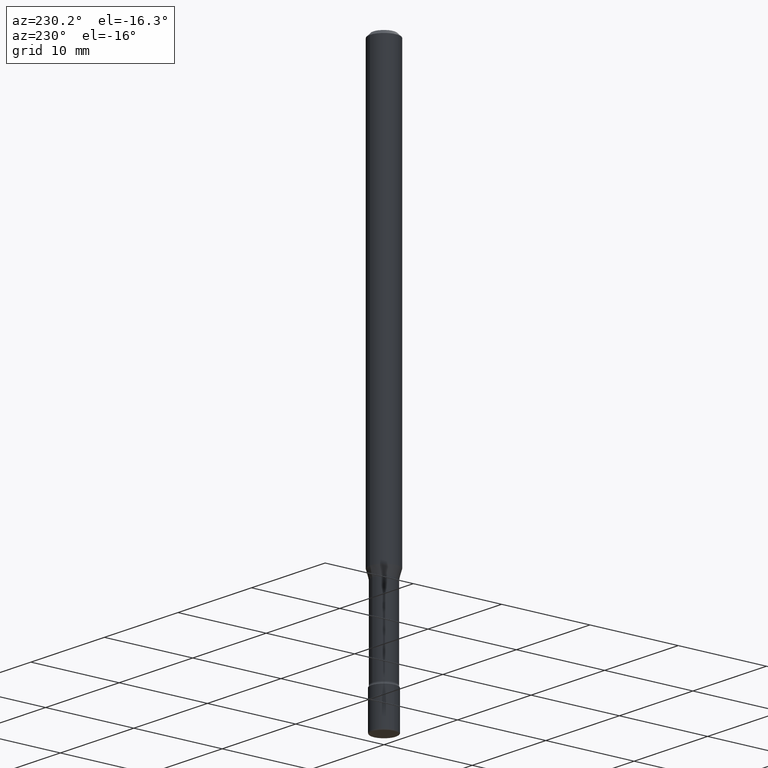
[diagram: clean part render]
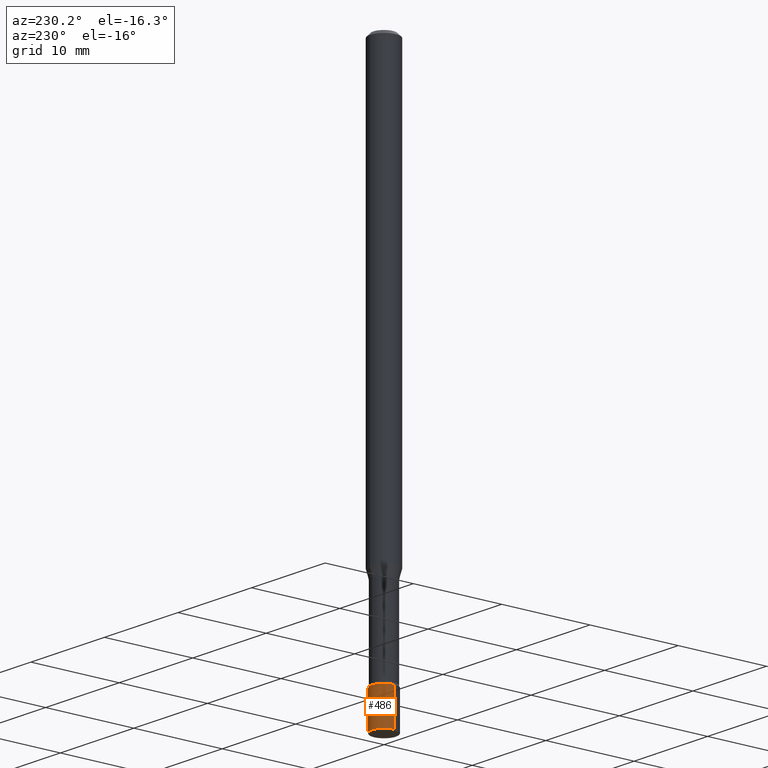
[diagram: same view with one face highlighted and labeled with its STEP entity id]
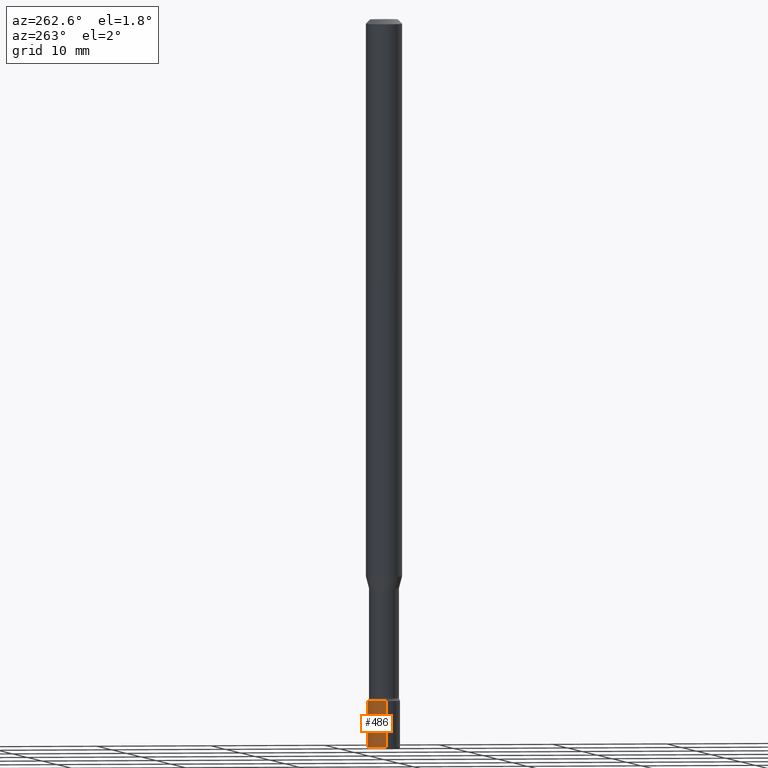
[diagram: same view with one face highlighted and labeled with its STEP entity id]
A machine part, auxiliary view. The second image highlights one B-rep face of the part: STEP entity #486.
A second angle (auxiliary view) of the same face is appended — the face is thin or edge-on in the first view.
In plain terms, the highlighted cylindrical surface (edge-blend (fillet) strip) has radius 1.397 mm, axis along (-0, 0, 1).
Its self-contained STEP definition (entity closure, byte-faithful):
#5 = EDGE_LOOP ( 'NONE', ( #14, #91, #257, #425 ) ) ;
#10 = DIRECTION ( 'NONE',  ( 1.000000000000000000, -6.982962677686262766E-15, 0.000000000000000000 ) ) ;
#14 = ORIENTED_EDGE ( 'NONE', *, *, #437, .T. ) ;
#47 = CIRCLE ( 'NONE', #453, 0.05500000000000000028 ) ;
#58 = LINE ( 'NONE', #511, #235 ) ;
#86 = EDGE_CURVE ( 'NONE', #407, #329, #58, .T. ) ;
#91 = ORIENTED_EDGE ( 'NONE', *, *, #86, .T. ) ;
#105 = CARTESIAN_POINT ( 'NONE',  ( 0.05500000000000000028, -3.840629472727446888E-16, 2.681897226687764826E-30 ) ) ;
#110 = DIRECTION ( 'NONE',  ( -2.445468806185136877E-29, 3.491481338843145188E-15, 1.000000000000000000 ) ) ;
#127 = CIRCLE ( 'NONE', #269, 0.05500000000000000028 ) ;
#167 = DIRECTION ( 'NONE',  ( 1.000000000000000000, -6.982962677686266711E-15, 4.876176775795935793E-29 ) ) ;
#178 = FACE_OUTER_BOUND ( 'NONE', #5, .T. ) ;
#180 = CARTESIAN_POINT ( 'NONE',  ( 5.710169662442294357E-29, -8.152608926198745099E-15, -2.334999999999999964 ) ) ;
#211 = CARTESIAN_POINT ( 'NONE',  ( 6.101444671431915719E-29, -8.711245940413648329E-15, -2.495000000000000107 ) ) ;
#225 = DIRECTION ( 'NONE',  ( -2.445468806185136877E-29, 3.491481338843145188E-15, 1.000000000000000000 ) ) ;
#235 = VECTOR ( 'NONE', #110, 39.37007874015748143 ) ;
#247 = EDGE_CURVE ( 'NONE', #481, #559, #274, .T. ) ;
#252 = EDGE_CURVE ( 'NONE', #559, #329, #127, .T. ) ;
#257 = ORIENTED_EDGE ( 'NONE', *, *, #252, .F. ) ;
#260 = CYLINDRICAL_SURFACE ( 'NONE', #402, 0.05500000000000000028 ) ;
#265 = CARTESIAN_POINT ( 'NONE',  ( 0.000000000000000000, 0.000000000000000000, 0.000000000000000000 ) ) ;
#269 = AXIS2_PLACEMENT_3D ( 'NONE', #180, #541, #10 ) ;
#274 = LINE ( 'NONE', #105, #555 ) ;
#290 = CARTESIAN_POINT ( 'NONE',  ( 0.05500000000000000028, -8.536671873471490084E-15, -2.334999999999999964 ) ) ;
#329 = VERTEX_POINT ( 'NONE', #337 ) ;
#337 = CARTESIAN_POINT ( 'NONE',  ( -0.05500000000000000028, -8.041128928638142054E-15, -2.334999999999999964 ) ) ;
#386 = CARTESIAN_POINT ( 'NONE',  ( -0.05499999999999988926, -8.320447435745593669E-15, -2.495000000000000107 ) ) ;
#399 = DIRECTION ( 'NONE',  ( -2.445468806185136597E-29, 3.491481338843145583E-15, 1.000000000000000000 ) ) ;
#402 = AXIS2_PLACEMENT_3D ( 'NONE', #265, #566, #167 ) ;
#407 = VERTEX_POINT ( 'NONE', #386 ) ;
#425 = ORIENTED_EDGE ( 'NONE', *, *, #247, .F. ) ;
#437 = EDGE_CURVE ( 'NONE', #481, #407, #47, .T. ) ;
#453 = AXIS2_PLACEMENT_3D ( 'NONE', #211, #399, #455 ) ;
#455 = DIRECTION ( 'NONE',  ( 1.000000000000000000, -6.982962677686279332E-15, 0.000000000000000000 ) ) ;
#481 = VERTEX_POINT ( 'NONE', #528 ) ;
#486 = ADVANCED_FACE ( 'NONE', ( #178 ), #260, .T. ) ;
#511 = CARTESIAN_POINT ( 'NONE',  ( -0.05500000000000000028, 3.907985046680551042E-16, -2.705414299640198362E-30 ) ) ;
#528 = CARTESIAN_POINT ( 'NONE',  ( 0.05499999999999988926, -9.095308887686390158E-15, -2.495000000000000107 ) ) ;
#541 = DIRECTION ( 'NONE',  ( -2.445468806185136597E-29, 3.491481338843145583E-15, 1.000000000000000000 ) ) ;
#555 = VECTOR ( 'NONE', #225, 39.37007874015748143 ) ;
#559 = VERTEX_POINT ( 'NONE', #290 ) ;
#566 = DIRECTION ( 'NONE',  ( -2.445468806185136597E-29, 3.491481338843145583E-15, 1.000000000000000000 ) ) ;